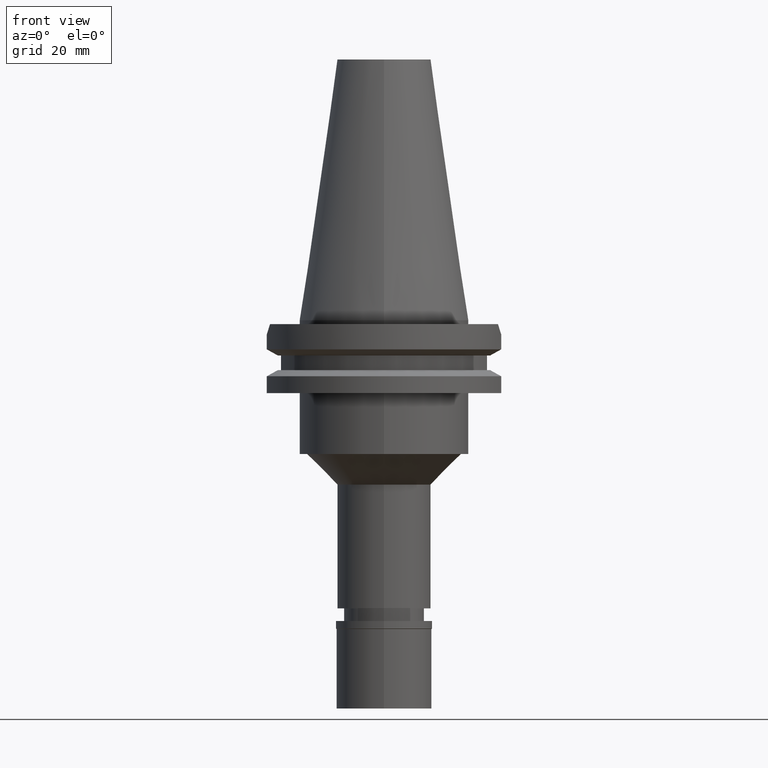
[diagram: clean part render]
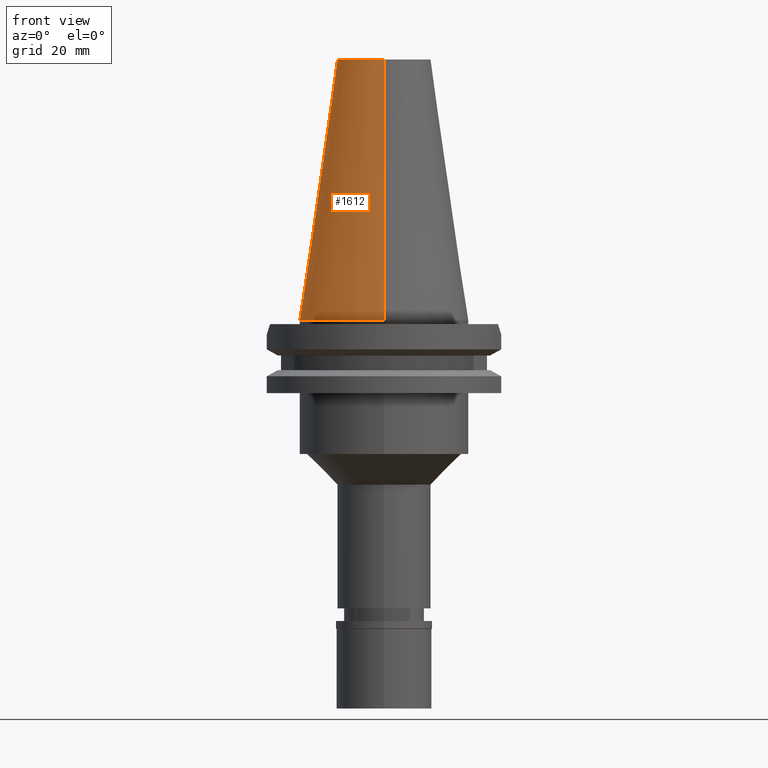
[diagram: same view with one face highlighted and labeled with its STEP entity id]
A machine part, front view. The second image highlights one B-rep face of the part: STEP entity #1612.
In plain terms, the highlighted conical surface has half-angle 8.297 deg.
Its self-contained STEP definition (entity closure, byte-faithful):
#52 = LINE ( 'NONE', #441, #95 ) ;
#95 = VECTOR ( 'NONE', #3289, 1000.000000000000114 ) ;
#107 = CARTESIAN_POINT ( 'NONE',  ( 0.0000000000000000000, 0.0000000000000000000, -2.842170943040000381E-13 ) ) ;
#258 = VERTEX_POINT ( 'NONE', #2356 ) ;
#303 = DIRECTION ( 'NONE',  ( 0.0000000000000000000, -1.000000000000000000, 0.0000000000000000000 ) ) ;
#339 = ORIENTED_EDGE ( 'NONE', *, *, #3073, .F. ) ;
#346 = VERTEX_POINT ( 'NONE', #2416 ) ;
#441 = CARTESIAN_POINT ( 'NONE',  ( 0.0000000000000000000, 12.27186888070000137, 68.25000000000000000 ) ) ;
#453 = CARTESIAN_POINT ( 'NONE',  ( 0.0000000000000000000, 0.0000000000000000000, 68.25000000000000000 ) ) ;
#458 = EDGE_LOOP ( 'NONE', ( #339, #3327, #2270, #2602 ) ) ;
#480 = AXIS2_PLACEMENT_3D ( 'NONE', #2197, #3000, #1974 ) ;
#481 = DIRECTION ( 'NONE',  ( 0.0000000000000000000, 0.0000000000000000000, -1.000000000000000000 ) ) ;
#507 = VERTEX_POINT ( 'NONE', #3300 ) ;
#553 = EDGE_CURVE ( 'NONE', #507, #258, #1273, .T. ) ;
#1069 = CONICAL_SURFACE ( 'NONE', #480, 17.24843444035000317, 0.1448125860318199565 ) ;
#1106 = DIRECTION ( 'NONE',  ( 0.0000000000000000000, 0.0000000000000000000, -1.000000000000000000 ) ) ;
#1161 = CARTESIAN_POINT ( 'NONE',  ( 0.0000000000000000000, 22.22500000000000142, -1.421085471519999938E-13 ) ) ;
#1273 = CIRCLE ( 'NONE', #3310, 12.27186888070000137 ) ;
#1314 = AXIS2_PLACEMENT_3D ( 'NONE', #107, #1106, #303 ) ;
#1318 = VECTOR ( 'NONE', #1734, 1000.000000000000114 ) ;
#1612 = ADVANCED_FACE ( 'NONE', ( #2473 ), #1069, .T. ) ;
#1734 = DIRECTION ( 'NONE',  ( 0.0000000000000000000, -0.1443069799456937474, -0.9895329683941577192 ) ) ;
#1851 = EDGE_CURVE ( 'NONE', #258, #2606, #52, .T. ) ;
#1974 = DIRECTION ( 'NONE',  ( 0.0000000000000000000, -1.000000000000000000, 0.0000000000000000000 ) ) ;
#2172 = CIRCLE ( 'NONE', #1314, 22.22500000000000142 ) ;
#2197 = CARTESIAN_POINT ( 'NONE',  ( 0.0000000000000000000, 0.0000000000000000000, 34.12500000000000000 ) ) ;
#2261 = DIRECTION ( 'NONE',  ( 0.0000000000000000000, -1.000000000000000000, 0.0000000000000000000 ) ) ;
#2270 = ORIENTED_EDGE ( 'NONE', *, *, #553, .T. ) ;
#2356 = CARTESIAN_POINT ( 'NONE',  ( 0.0000000000000000000, 12.27186888070000137, 68.25000000000000000 ) ) ;
#2416 = CARTESIAN_POINT ( 'NONE',  ( 0.0000000000000000000, -22.22500000000000142, -1.421085471519999938E-13 ) ) ;
#2473 = FACE_OUTER_BOUND ( 'NONE', #458, .T. ) ;
#2574 = EDGE_CURVE ( 'NONE', #507, #346, #2990, .T. ) ;
#2602 = ORIENTED_EDGE ( 'NONE', *, *, #1851, .T. ) ;
#2606 = VERTEX_POINT ( 'NONE', #1161 ) ;
#2719 = CARTESIAN_POINT ( 'NONE',  ( 0.0000000000000000000, -12.27186888070000137, 68.25000000000000000 ) ) ;
#2990 = LINE ( 'NONE', #2719, #1318 ) ;
#3000 = DIRECTION ( 'NONE',  ( 0.0000000000000000000, 0.0000000000000000000, -1.000000000000000000 ) ) ;
#3073 = EDGE_CURVE ( 'NONE', #346, #2606, #2172, .T. ) ;
#3289 = DIRECTION ( 'NONE',  ( 0.0000000000000000000, 0.1443069799456937474, -0.9895329683941577192 ) ) ;
#3300 = CARTESIAN_POINT ( 'NONE',  ( 0.0000000000000000000, -12.27186888070000137, 68.25000000000000000 ) ) ;
#3310 = AXIS2_PLACEMENT_3D ( 'NONE', #453, #481, #2261 ) ;
#3327 = ORIENTED_EDGE ( 'NONE', *, *, #2574, .F. ) ;